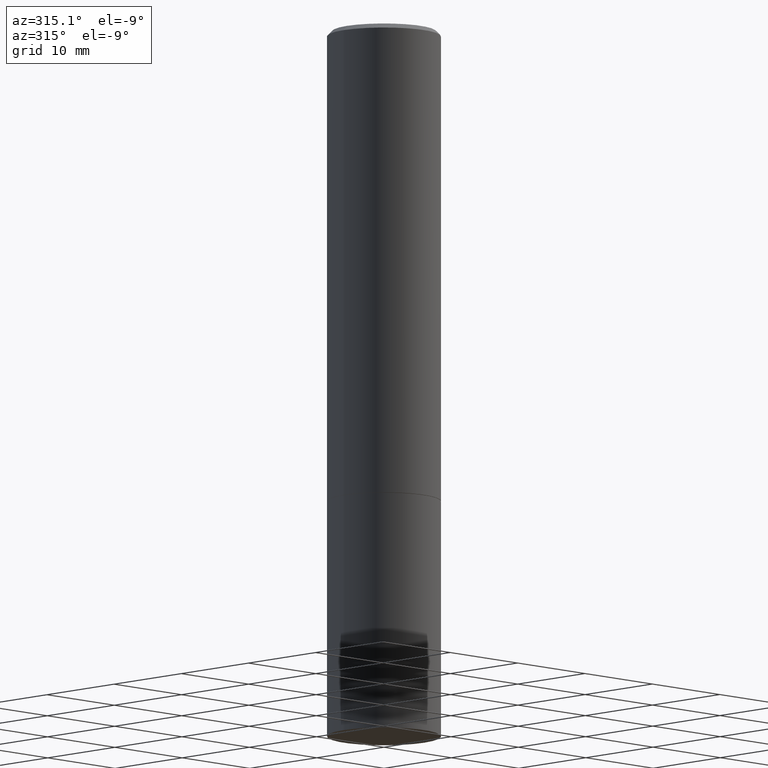
[diagram: clean part render]
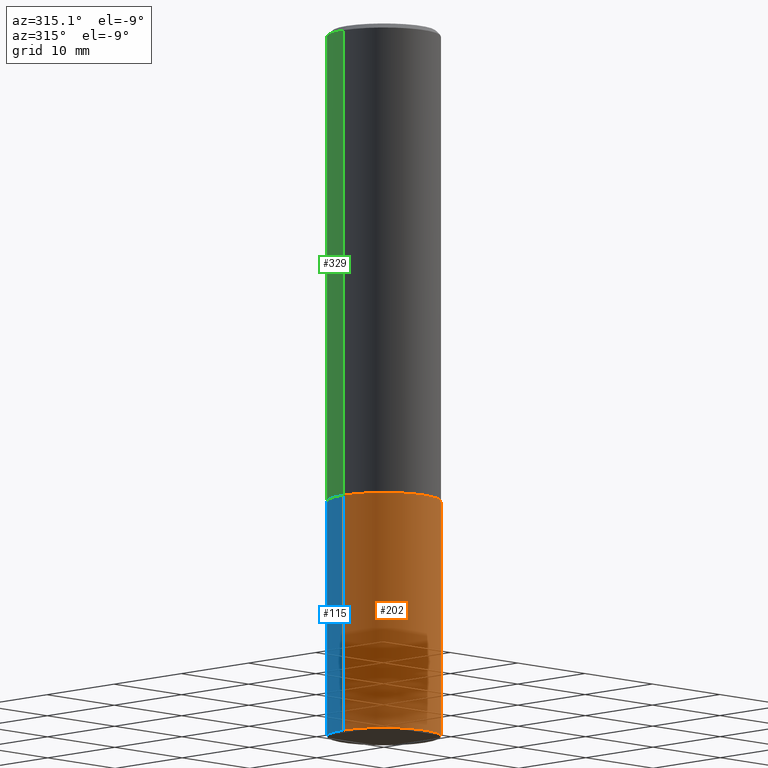
[diagram: same view with three faces highlighted in distinct colors, each labeled with its STEP entity id]
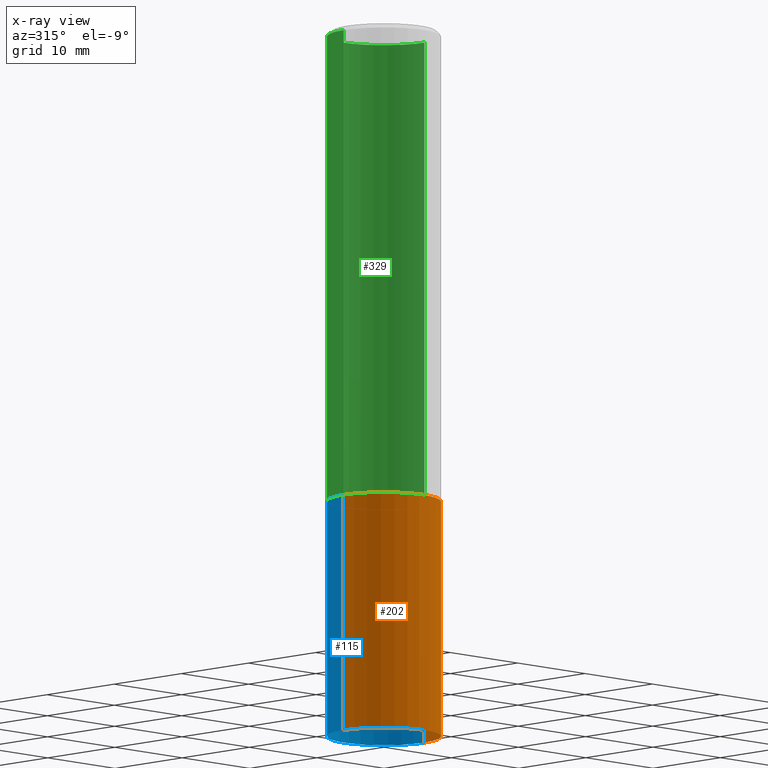
[diagram: x-ray of the same camera — body ghosted, the three highlighted faces saturated]
A machine part, auxiliary view with three faces highlighted in distinct colors.
The next image is the same camera in x-ray (body ghosted, the three faces saturated) — at least one of them is partly hidden behind the body in this view.
Their STEP definitions:

[orange] entity #202 — the highlighted cylindrical surface (partial cylindrical patch) has radius 5.9995 mm, axis along (-0, 0, 1).
#9 = EDGE_CURVE ( 'NONE', #181, #117, #356, .T. ) ;
#13 = DIRECTION ( 'NONE',  ( -2.445468806185136877E-29, 3.491481338843145188E-15, 1.000000000000000000 ) ) ;
#22 = EDGE_CURVE ( 'NONE', #117, #50, #228, .T. ) ;
#27 = CARTESIAN_POINT ( 'NONE',  ( 0.000000000000000000, 0.000000000000000000, 0.000000000000000000 ) ) ;
#39 = DIRECTION ( 'NONE',  ( 1.000000000000000000, -6.982962677686265133E-15, 0.000000000000000000 ) ) ;
#46 = DIRECTION ( 'NONE',  ( 1.000000000000000000, -6.982962677686265133E-15, 0.000000000000000000 ) ) ;
#50 = VERTEX_POINT ( 'NONE', #99 ) ;
#52 = EDGE_LOOP ( 'NONE', ( #266, #58, #348, #144 ) ) ;
#54 = CYLINDRICAL_SURFACE ( 'NONE', #98, 0.2361999999999999933 ) ;
#57 = EDGE_CURVE ( 'NONE', #88, #50, #361, .T. ) ;
#58 = ORIENTED_EDGE ( 'NONE', *, *, #147, .T. ) ;
#60 = AXIS2_PLACEMENT_3D ( 'NONE', #296, #69, #46 ) ;
#68 = CARTESIAN_POINT ( 'NONE',  ( 7.220980290903470182E-29, -1.030964609733603853E-14, -2.952799999999999869 ) ) ;
#69 = DIRECTION ( 'NONE',  ( -2.445468806185136597E-29, 3.491481338843145583E-15, 1.000000000000000000 ) ) ;
#88 = VERTEX_POINT ( 'NONE', #156 ) ;
#91 = VECTOR ( 'NONE', #13, 39.37007874015748143 ) ;
#98 = AXIS2_PLACEMENT_3D ( 'NONE', #27, #133, #349 ) ;
#99 = CARTESIAN_POINT ( 'NONE',  ( 0.2361999999999999933, -8.522356799982226655E-15, -1.968499999999999694 ) ) ;
#109 = CARTESIAN_POINT ( 'NONE',  ( -0.2361999999999999933, -6.913011614559027935E-15, -1.968499999999999694 ) ) ;
#112 = CIRCLE ( 'NONE', #123, 0.2361999999999999933 ) ;
#117 = VERTEX_POINT ( 'NONE', #109 ) ;
#123 = AXIS2_PLACEMENT_3D ( 'NONE', #68, #187, #39 ) ;
#133 = DIRECTION ( 'NONE',  ( -2.445468806185136597E-29, 3.491481338843145583E-15, 1.000000000000000000 ) ) ;
#144 = ORIENTED_EDGE ( 'NONE', *, *, #22, .F. ) ;
#145 = VECTOR ( 'NONE', #160, 39.37007874015748143 ) ;
#147 = EDGE_CURVE ( 'NONE', #181, #88, #112, .T. ) ;
#156 = CARTESIAN_POINT ( 'NONE',  ( 0.2361999999999999933, -1.195902188180553348E-14, -2.952799999999999869 ) ) ;
#160 = DIRECTION ( 'NONE',  ( -2.445468806185136877E-29, 3.491481338843145188E-15, 1.000000000000000000 ) ) ;
#181 = VERTEX_POINT ( 'NONE', #285 ) ;
#187 = DIRECTION ( 'NONE',  ( -2.445468806185136597E-29, 3.491481338843145583E-15, 1.000000000000000000 ) ) ;
#195 = CARTESIAN_POINT ( 'NONE',  ( -0.2361999999999999933, 1.678301941865356591E-15, -1.161852468318208757E-29 ) ) ;
#202 = ADVANCED_FACE ( 'NONE', ( #280 ), #54, .T. ) ;
#217 = CARTESIAN_POINT ( 'NONE',  ( 0.2361999999999999933, -1.649375784469496131E-15, 1.151752954443000088E-29 ) ) ;
#228 = CIRCLE ( 'NONE', #60, 0.2361999999999999933 ) ;
#266 = ORIENTED_EDGE ( 'NONE', *, *, #9, .F. ) ;
#280 = FACE_OUTER_BOUND ( 'NONE', #52, .T. ) ;
#285 = CARTESIAN_POINT ( 'NONE',  ( -0.2361999999999999933, -6.913011614559027935E-15, -2.952799999999999869 ) ) ;
#296 = CARTESIAN_POINT ( 'NONE',  ( 4.813905344975440714E-29, -6.872981015512730918E-15, -1.968499999999999694 ) ) ;
#348 = ORIENTED_EDGE ( 'NONE', *, *, #57, .T. ) ;
#349 = DIRECTION ( 'NONE',  ( 1.000000000000000000, -6.982962677686266711E-15, 4.876176775795936353E-29 ) ) ;
#356 = LINE ( 'NONE', #195, #145 ) ;
#361 = LINE ( 'NONE', #217, #91 ) ;

[blue] entity #115 — the highlighted cylindrical surface (partial cylindrical patch) has radius 5.9995 mm, axis along (-0, 0, 1).
#5 = ORIENTED_EDGE ( 'NONE', *, *, #351, .T. ) ;
#9 = EDGE_CURVE ( 'NONE', #181, #117, #356, .T. ) ;
#10 = ORIENTED_EDGE ( 'NONE', *, *, #57, .F. ) ;
#13 = DIRECTION ( 'NONE',  ( -2.445468806185136877E-29, 3.491481338843145188E-15, 1.000000000000000000 ) ) ;
#42 = DIRECTION ( 'NONE',  ( 1.000000000000000000, -6.982962677686265133E-15, 0.000000000000000000 ) ) ;
#50 = VERTEX_POINT ( 'NONE', #99 ) ;
#57 = EDGE_CURVE ( 'NONE', #88, #50, #361, .T. ) ;
#71 = CARTESIAN_POINT ( 'NONE',  ( 4.813905344975440714E-29, -6.872981015512730918E-15, -1.968499999999999694 ) ) ;
#75 = DIRECTION ( 'NONE',  ( -2.445468806185136597E-29, 3.491481338843145583E-15, 1.000000000000000000 ) ) ;
#85 = AXIS2_PLACEMENT_3D ( 'NONE', #332, #75, #270 ) ;
#88 = VERTEX_POINT ( 'NONE', #156 ) ;
#91 = VECTOR ( 'NONE', #13, 39.37007874015748143 ) ;
#99 = CARTESIAN_POINT ( 'NONE',  ( 0.2361999999999999933, -8.522356799982226655E-15, -1.968499999999999694 ) ) ;
#109 = CARTESIAN_POINT ( 'NONE',  ( -0.2361999999999999933, -6.913011614559027935E-15, -1.968499999999999694 ) ) ;
#115 = ADVANCED_FACE ( 'NONE', ( #246 ), #220, .T. ) ;
#117 = VERTEX_POINT ( 'NONE', #109 ) ;
#145 = VECTOR ( 'NONE', #160, 39.37007874015748143 ) ;
#146 = CIRCLE ( 'NONE', #244, 0.2361999999999999933 ) ;
#153 = AXIS2_PLACEMENT_3D ( 'NONE', #71, #299, #42 ) ;
#156 = CARTESIAN_POINT ( 'NONE',  ( 0.2361999999999999933, -1.195902188180553348E-14, -2.952799999999999869 ) ) ;
#160 = DIRECTION ( 'NONE',  ( -2.445468806185136877E-29, 3.491481338843145188E-15, 1.000000000000000000 ) ) ;
#172 = EDGE_CURVE ( 'NONE', #50, #117, #317, .T. ) ;
#180 = DIRECTION ( 'NONE',  ( -2.445468806185136597E-29, 3.491481338843145583E-15, 1.000000000000000000 ) ) ;
#181 = VERTEX_POINT ( 'NONE', #285 ) ;
#182 = DIRECTION ( 'NONE',  ( 1.000000000000000000, -6.982962677686265133E-15, 0.000000000000000000 ) ) ;
#195 = CARTESIAN_POINT ( 'NONE',  ( -0.2361999999999999933, 1.678301941865356591E-15, -1.161852468318208757E-29 ) ) ;
#217 = CARTESIAN_POINT ( 'NONE',  ( 0.2361999999999999933, -1.649375784469496131E-15, 1.151752954443000088E-29 ) ) ;
#220 = CYLINDRICAL_SURFACE ( 'NONE', #85, 0.2361999999999999933 ) ;
#232 = ORIENTED_EDGE ( 'NONE', *, *, #9, .T. ) ;
#244 = AXIS2_PLACEMENT_3D ( 'NONE', #355, #180, #182 ) ;
#246 = FACE_OUTER_BOUND ( 'NONE', #315, .T. ) ;
#270 = DIRECTION ( 'NONE',  ( 1.000000000000000000, -6.982962677686266711E-15, 4.876176775795936353E-29 ) ) ;
#285 = CARTESIAN_POINT ( 'NONE',  ( -0.2361999999999999933, -6.913011614559027935E-15, -2.952799999999999869 ) ) ;
#299 = DIRECTION ( 'NONE',  ( -2.445468806185136597E-29, 3.491481338843145583E-15, 1.000000000000000000 ) ) ;
#315 = EDGE_LOOP ( 'NONE', ( #5, #232, #353, #10 ) ) ;
#317 = CIRCLE ( 'NONE', #153, 0.2361999999999999933 ) ;
#332 = CARTESIAN_POINT ( 'NONE',  ( 0.000000000000000000, 0.000000000000000000, 0.000000000000000000 ) ) ;
#351 = EDGE_CURVE ( 'NONE', #88, #181, #146, .T. ) ;
#353 = ORIENTED_EDGE ( 'NONE', *, *, #172, .F. ) ;
#355 = CARTESIAN_POINT ( 'NONE',  ( 7.220980290903470182E-29, -1.030964609733603853E-14, -2.952799999999999869 ) ) ;
#356 = LINE ( 'NONE', #195, #145 ) ;
#361 = LINE ( 'NONE', #217, #91 ) ;

[green] entity #329 — the highlighted cylindrical surface (partial cylindrical patch) has radius 5.9995 mm, axis along (-0, 0, 1).
#11 = CARTESIAN_POINT ( 'NONE',  ( 0.000000000000000000, 0.000000000000000000, 0.000000000000000000 ) ) ;
#14 = AXIS2_PLACEMENT_3D ( 'NONE', #11, #170, #345 ) ;
#18 = DIRECTION ( 'NONE',  ( -2.445468806185136877E-29, 3.491481338843145188E-15, 1.000000000000000000 ) ) ;
#38 = ORIENTED_EDGE ( 'NONE', *, *, #240, .F. ) ;
#51 = DIRECTION ( 'NONE',  ( -2.445468806185136597E-29, 3.491481338843145583E-15, 1.000000000000000000 ) ) ;
#59 = CIRCLE ( 'NONE', #164, 0.2361999999999997157 ) ;
#61 = CYLINDRICAL_SURFACE ( 'NONE', #14, 0.2361999999999998545 ) ;
#65 = ORIENTED_EDGE ( 'NONE', *, *, #298, .T. ) ;
#73 = DIRECTION ( 'NONE',  ( -2.445468806185136877E-29, 3.491481338843145188E-15, 1.000000000000000000 ) ) ;
#77 = CARTESIAN_POINT ( 'NONE',  ( 0.2361999999999999933, -8.518865318643383648E-15, -1.967499999999999805 ) ) ;
#81 = LINE ( 'NONE', #163, #253 ) ;
#83 = CARTESIAN_POINT ( 'NONE',  ( 0.2361999999999997157, -1.690279253850496996E-15, -0.02000000000000005593 ) ) ;
#114 = VECTOR ( 'NONE', #73, 39.37007874015748143 ) ;
#125 = EDGE_LOOP ( 'NONE', ( #290, #65, #224, #38 ) ) ;
#126 = EDGE_CURVE ( 'NONE', #350, #301, #59, .T. ) ;
#127 = VERTEX_POINT ( 'NONE', #337 ) ;
#136 = DIRECTION ( 'NONE',  ( 1.000000000000000000, -6.982962677686269077E-15, 0.000000000000000000 ) ) ;
#137 = DIRECTION ( 'NONE',  ( 1.000000000000000000, -6.982962677686266711E-15, 0.000000000000000000 ) ) ;
#163 = CARTESIAN_POINT ( 'NONE',  ( 0.2361999999999998545, -1.649375784469495145E-15, 1.151752954442999387E-29 ) ) ;
#164 = AXIS2_PLACEMENT_3D ( 'NONE', #197, #303, #137 ) ;
#169 = CARTESIAN_POINT ( 'NONE',  ( -0.2361999999999998545, 1.678301941865355605E-15, -1.161852468318208056E-29 ) ) ;
#170 = DIRECTION ( 'NONE',  ( -2.445468806185136597E-29, 3.491481338843145583E-15, 1.000000000000000000 ) ) ;
#185 = VERTEX_POINT ( 'NONE', #77 ) ;
#197 = CARTESIAN_POINT ( 'NONE',  ( 4.890937612370287172E-31, -6.982962677686310098E-17, -0.02000000000000005593 ) ) ;
#206 = AXIS2_PLACEMENT_3D ( 'NONE', #338, #51, #136 ) ;
#224 = ORIENTED_EDGE ( 'NONE', *, *, #126, .F. ) ;
#240 = EDGE_CURVE ( 'NONE', #185, #350, #81, .T. ) ;
#242 = CARTESIAN_POINT ( 'NONE',  ( -0.2361999999999997157, 1.579546157692631255E-15, -0.02000000000000005593 ) ) ;
#249 = LINE ( 'NONE', #169, #114 ) ;
#253 = VECTOR ( 'NONE', #18, 39.37007874015748143 ) ;
#261 = FACE_OUTER_BOUND ( 'NONE', #125, .T. ) ;
#288 = EDGE_CURVE ( 'NONE', #185, #127, #362, .T. ) ;
#290 = ORIENTED_EDGE ( 'NONE', *, *, #288, .T. ) ;
#298 = EDGE_CURVE ( 'NONE', #127, #301, #249, .T. ) ;
#301 = VERTEX_POINT ( 'NONE', #242 ) ;
#303 = DIRECTION ( 'NONE',  ( -2.445468806185136597E-29, 3.491481338843145583E-15, 1.000000000000000000 ) ) ;
#329 = ADVANCED_FACE ( 'NONE', ( #261 ), #61, .T. ) ;
#337 = CARTESIAN_POINT ( 'NONE',  ( -0.2362000000000000210, -1.791357638610016844E-15, -1.967499999999999805 ) ) ;
#338 = CARTESIAN_POINT ( 'NONE',  ( 4.811459876169255671E-29, -6.869489534173887122E-15, -1.967499999999999805 ) ) ;
#345 = DIRECTION ( 'NONE',  ( 1.000000000000000000, -6.982962677686266711E-15, 4.876176775795935793E-29 ) ) ;
#350 = VERTEX_POINT ( 'NONE', #83 ) ;
#362 = CIRCLE ( 'NONE', #206, 0.2361999999999999933 ) ;